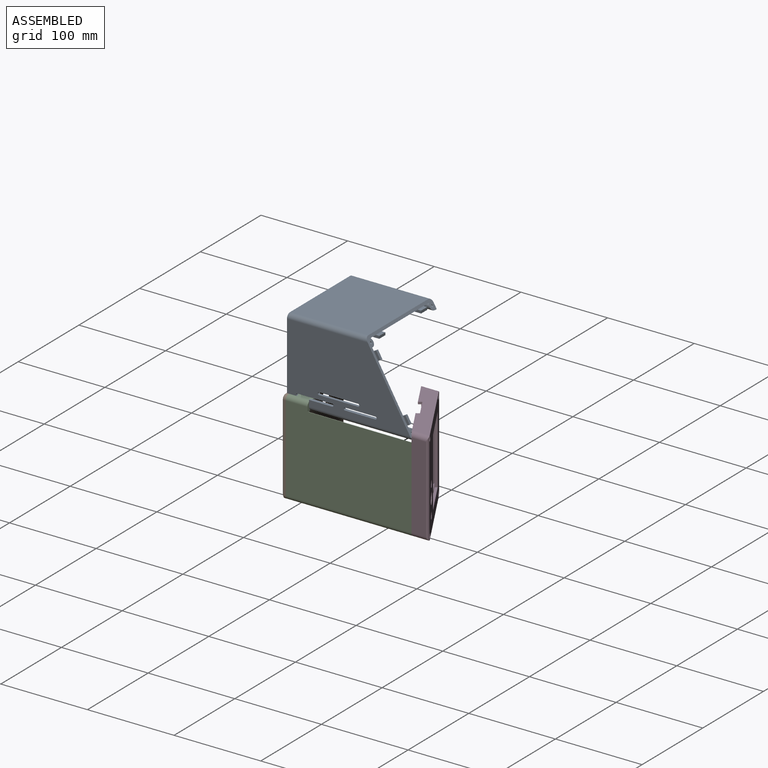
[diagram: assembled view]
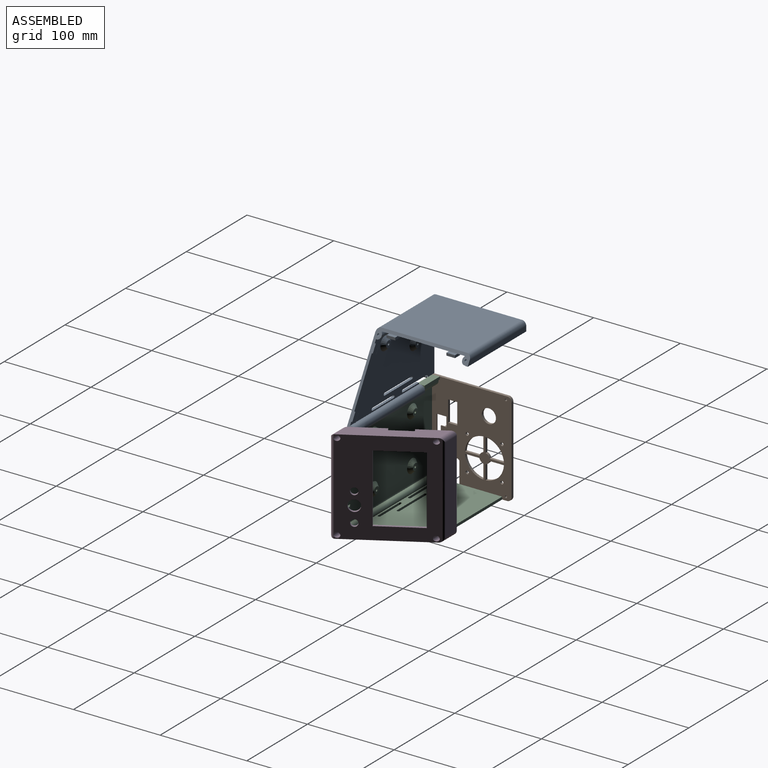
[diagram: assembled view, second angle]
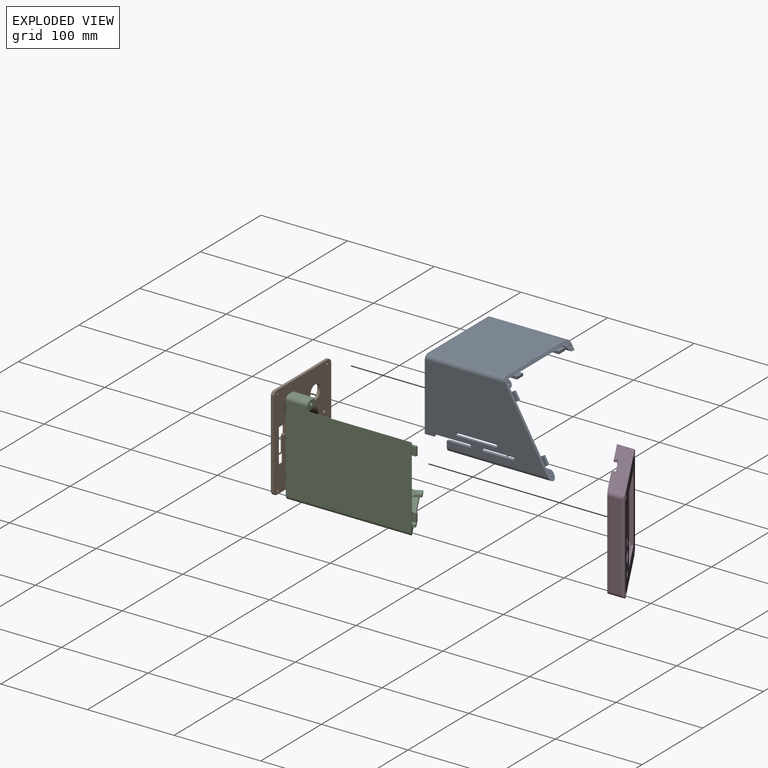
[diagram: exploded view]
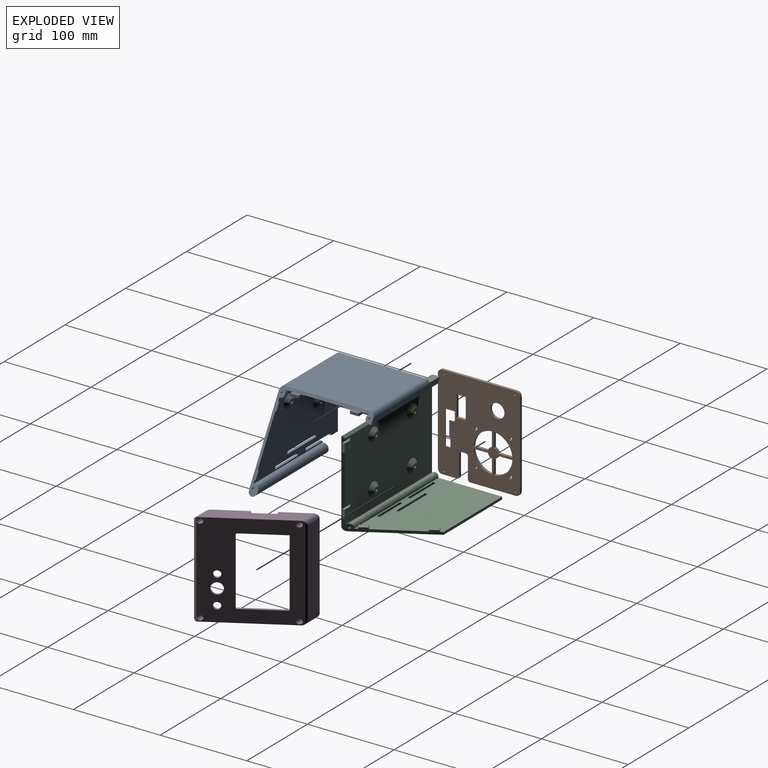
[diagram: exploded view, second angle]
ASSEMBLY  parts=4 mates=3
PART A: 75 faces, bbox 146.2x96x110.2 mm
  f0: cylinder r=1.25mm len=105.58mm, axis (-1,0,0), area 823.5mm2, adj f1,f70
  f1: plane 110.21x96.01mm, normal (0.87,0.5,0), area 833.6mm2, adj f0,f2,f3,f5,f16,f17,f18,f19
  f2: plane 116.71x0.48mm, normal (0,0,-1), area 55.7mm2, adj f1,f39,f42,f68
  f3: plane 132x73.93mm, normal (0,0,-1), area 7692mm2, adj f1,f4,f22,f33,f37,f40,f44,f46
  f4: plane 109x82.55mm, normal (-1,0,0), area 632.8mm2, adj f3,f5,f16,f17,f20,f21,f22,f23
  f5: plane 96.5x3mm, normal (0,-1,0), area 289.5mm2, adj f1,f4,f28,f30
  f6: plane 10x8mm, normal (0,-1,0), area 80mm2, adj f9,f11,f12,f13
  f7: plane 10x8mm, normal (0,-1,0), area 80mm2, adj f8,f10,f14,f15
  f8: plane 10x3mm, normal (1,0,0), area 30mm2, adj f7,f10,f14,f18
  f9: plane 10x3mm, normal (1,0,0), area 30mm2, adj f6,f11,f13,f19
  f10: plane 13.2x3mm, normal (0,0,-1), area 31.8mm2, adj f7,f8,f15,f18,f20
  f11: plane 13.2x3mm, normal (0,0,1), area 31.8mm2, adj f6,f9,f12,f19,f20
  f12: plane 10x5.2mm, normal (-0.5,-0.87,0), area 60mm2, adj f6,f11,f13,f20
  f13: plane 13.2x3mm, normal (0,0,-1), area 31.8mm2, adj f6,f9,f12,f19,f20
  f14: plane 13.2x3mm, normal (0,0,1), area 31.8mm2, adj f7,f8,f15,f18,f20
  f15: plane 10x5.2mm, normal (-0.5,-0.87,0), area 60mm2, adj f7,f10,f14,f20
  f16: cylinder r=4mm len=96.34mm, axis (-1,0,0), area 1046.3mm2, adj f1,f4,f17,f28
  f17: cylinder r=5mm len=92.16mm, axis (-1,0,0), area 153.3mm2, adj f1,f4,f16,f20
  f18: plane 10x4mm, normal (0,1,0), area 40mm2, adj f1,f8,f10,f14
  f19: plane 10x4mm, normal (0,1,0), area 40mm2, adj f1,f9,f11,f13
  f20: plane 93x92mm, normal (0,-1,0), area 8372mm2, adj f1,f4,f10,f11,f12,f13,f14,f15
  f21: cylinder r=5mm len=92.16mm, axis (-1,0,0), area 153.3mm2, adj f1,f4,f20,f22
  f22: cylinder r=4mm len=96.34mm, axis (-1,0,0), area 1046.3mm2, adj f1,f3,f4,f21
  f23: cylinder r=5mm len=93.15mm, axis (-1,0,0), area 720.3mm2, adj f1,f4,f24,f29
  f24: plane 99x90.27mm, normal (0,1,0), area 8936.5mm2, adj f1,f4,f23,f25
  f25: cylinder r=5mm len=93.15mm, axis (-1,0,0), area 720.3mm2, adj f1,f4,f24,f30
  f26: cylinder r=1.25mm len=94.75mm, axis (-1,0,0), area 738.6mm2, adj f1,f4
  f27: cylinder r=1.25mm len=94.75mm, axis (-1,0,0), area 738.6mm2, adj f1,f4
  f28: plane 96.5x0.43mm, normal (0,0,1), area 41.2mm2, adj f1,f4,f5,f16
  f29: plane 142.11x84.8mm, normal (0,0,1), area 9413.5mm2, adj f1,f4,f23,f42,f49,f50,f51,f52
  f30: plane 96.5x5.8mm, normal (0,0,-1), area 550mm2, adj f1,f4,f5,f25
  f31: plane 8.66x5mm, normal (0.87,0.5,0), area 30mm2, adj f32,f33,f34,f36
  f32: plane 11.66x10.2mm, normal (0,0,-1), area 60mm2, adj f31,f33,f36,f37
  f33: plane 9.7x5.6mm, normal (-0.5,0.87,0), area 25.8mm2, adj f3,f31,f32,f34,f37
  f34: plane 10.16x7.6mm, normal (0,0,1), area 30mm2, adj f1,f31,f33,f36
  f35: plane 7.75x3.36mm, normal (0,0,-1), area 13mm2, adj f1,f36,f40
  f36: plane 8.41x4.86mm, normal (0.5,-0.87,0), area 25.2mm2, adj f31,f32,f34,f35,f37,f40
  f37: plane 10.52x9.5mm, normal (-0.43,-0.25,-0.87), area 59.3mm2, adj f3,f32,f33,f36,f40
  f38: plane 113.55x0.94mm, normal (0,1,-0.02), area 106.4mm2, adj f1,f39,f41,f68
  f39: cylinder r=5mm len=116.44mm, axis (-1,0,0), area 891mm2, adj f1,f2,f38,f68
  f40: plane 113.54x1mm, normal (0,1,0), area 112.8mm2, adj f1,f3,f35,f36,f37,f41,f68
  f41: cylinder r=4mm len=113.54mm, axis (-1,0,0), area 19.2mm2, adj f1,f38,f40,f68
  f42: cylinder r=5mm len=119.61mm, axis (-1,0,0), area 1862.2mm2, adj f1,f2,f29,f68
  f43: plane 10.16x7.6mm, normal (0,0,1), area 30mm2, adj f1,f44,f46,f47
  f44: plane 9.7x5.6mm, normal (-0.5,0.87,0), area 25.8mm2, adj f3,f43,f45,f47,f48
  f45: plane 11.66x10.2mm, normal (0,0,-1), area 60mm2, adj f44,f46,f47,f48
  f46: plane 9.7x5.6mm, normal (0.5,-0.87,0), area 25.8mm2, adj f3,f43,f45,f47,f48
  f47: plane 8.66x5mm, normal (0.87,0.5,0), area 30mm2, adj f43,f44,f45,f46
  f48: plane 11.26x9.5mm, normal (-0.43,-0.25,-0.87), area 60mm2, adj f3,f44,f45,f46
  f49: plane 35x3mm, normal (0,1,0), area 105mm2, adj f3,f29,f50,f52
  f50: cylinder r=1.5mm len=3mm, axis (0,0,-1), area 14.1mm2, adj f3,f29,f49,f51
  f51: plane 35x3mm, normal (0,-1,0), area 105mm2, adj f3,f29,f50,f52
  f52: cylinder r=1.5mm len=3mm, axis (0,0,-1), area 14.1mm2, adj f3,f29,f49,f51
  f53: plane 45x3mm, normal (0,1,0), area 135mm2, adj f3,f29,f54,f56
  f54: cylinder r=1.5mm len=3mm, axis (0,0,-1), area 14.1mm2, adj f3,f29,f53,f55
  f55: plane 45x3mm, normal (0,-1,0), area 135mm2, adj f3,f29,f54,f56
  f56: cylinder r=1.5mm len=3mm, axis (0,0,-1), area 14.1mm2, adj f3,f29,f53,f55
  f57: plane 26.6x3mm, normal (0,1,0), area 79.8mm2, adj f3,f29,f59,f68
  f58: plane 40x3mm, normal (0,-1,0), area 120mm2, adj f3,f29,f59,f72
  f59: cylinder r=1.5mm len=3mm, axis (0,0,-1), area 14.1mm2, adj f3,f29,f57,f58
  f60: cylinder r=1.25mm len=4mm, axis (0,0,1), area 31.4mm2, adj f61,f62
  f61: plane 8x8mm, normal (0,0,-1), area 45.4mm2, adj f60,f67
  f62: plane 2.5x2.5mm, normal (0,0,-1), area 4.9mm2, adj f60
  f63: cylinder r=1.25mm len=4mm, axis (0,0,1), area 31.4mm2, adj f64,f65
  f64: plane 8x8mm, normal (0,0,-1), area 45.4mm2, adj f63,f66
  f65: plane 2.5x2.5mm, normal (0,0,-1), area 4.9mm2, adj f63
  f66: cone r=4mm half-angle=45deg, axis (0,0,1), area 213.3mm2, adj f3,f64,f71
  f67: cone r=4mm half-angle=45deg, axis (0,0,1), area 213.3mm2, adj f3,f61
  f68: plane 12x10mm, normal (-1,0,0), area 79.1mm2, adj f2,f3,f29,f38,f39,f40,f41,f42
  f69: cylinder r=2.12mm len=11mm, axis (-1,0,0), area 146.9mm2, adj f68,f70
  f70: plane 4.25x4.25mm, normal (-1,0,0), area 9.3mm2, adj f0,f69
  f71: extruded ~1.4x0.75mm, area 1.1mm2, adj f3,f66,f73
  f72: cylinder r=1.5mm len=3mm, axis (0,0,-1), area 11.5mm2, adj f3,f29,f58,f74
  f73: plane 1.4x0.04mm, normal (-1,0,0), area 0mm2, adj f3,f71
  f74: plane 11.17x3mm, normal (0,-1,0), area 33.5mm2, adj f3,f4,f29,f72
PART B: 118 faces, bbox 4x94.8x109 mm
  f0: plane 24.32x1mm, normal (0,-1,0), area 24.3mm2, adj f11,f27,f29,f63
  f1: plane 107x92.8mm, normal (-1,0,0), area 6216.8mm2, adj f65,f66,f67,f68,f69,f70,f71,f72
  f2: plane 16.79x1mm, normal (0,-1,0), area 16.8mm2, adj f3,f5,f11,f57
  f3: plane 4.5x1mm, normal (0,0,1), area 4.5mm2, adj f2,f4,f11,f57
  f4: plane 27.79x1mm, normal (0,1,0), area 27.8mm2, adj f3,f11,f25,f57
  f5: plane 6.5x3mm, normal (0,0,1), area 11.5mm2, adj f2,f11,f26,f57,f62,f72
  f6: plane 6x1mm, normal (0,0,-1), area 6mm2, adj f7,f8,f11,f57
  f7: plane 10x1mm, normal (0,1,0), area 10mm2, adj f6,f9,f11,f57
  f8: plane 10x1mm, normal (0,-1,0), area 10mm2, adj f6,f9,f11,f57
  f9: plane 6x1mm, normal (0,0,1), area 6mm2, adj f7,f8,f11,f57
  f10: plane 17.1x3mm, normal (0,0,-1), area 51.3mm2, adj f11,f14,f56,f92
  f11: plane 109x94.8mm, normal (1,0,0), area 7923.9mm2, adj f0,f2,f3,f4,f5,f6,f7,f8
  f12: cylinder r=5mm len=5mm, axis (1,0,0), area 23.6mm2, adj f11,f13,f22,f78
  f13: plane 52.7x3mm, normal (0,0,-1), area 158.1mm2, adj f11,f12,f55,f77
  f14: cylinder r=5mm len=5mm, axis (1,0,0), area 23.6mm2, adj f10,f11,f15,f90
  f15: plane 99x3mm, normal (0,-1,0), area 297mm2, adj f11,f14,f16,f88
  f16: cylinder r=5mm len=5mm, axis (1,0,0), area 23.6mm2, adj f11,f15,f17,f86
  f17: plane 84.8x3mm, normal (0,0,1), area 254.4mm2, adj f11,f16,f18,f84
  f18: cylinder r=5mm len=5mm, axis (1,0,0), area 23.6mm2, adj f11,f17,f22,f82
  f19: cylinder r=1.25mm len=3mm, axis (1,0,0), area 23.6mm2, adj f11,f115
  f20: cylinder r=1.25mm len=3mm, axis (1,0,0), area 23.6mm2, adj f11,f116
  f21: cylinder r=1.25mm len=3mm, axis (1,0,0), area 23.6mm2, adj f11,f117
  f22: plane 99x3mm, normal (0,1,0), area 297mm2, adj f11,f12,f18,f80
  f23: cylinder r=1.25mm len=3mm, axis (1,0,0), area 23.6mm2, adj f11,f114
  f24: cylinder r=1.85mm len=3.7mm, axis (-1,0,0), area 34.9mm2, adj f11,f112
  f25: plane 15x3mm, normal (0,0,-1), area 41mm2, adj f4,f11,f26,f57,f58,f69
  f26: plane 11x3mm, normal (0,-1,0), area 33mm2, adj f5,f11,f25,f71
  f27: plane 20.5x3mm, normal (0,0,1), area 51.5mm2, adj f0,f11,f28,f63,f64,f74
  f28: plane 24.32x3mm, normal (0,1,0), area 73mm2, adj f11,f27,f29,f73
  f29: plane 20.5x3mm, normal (0,0,-1), area 51.5mm2, adj f0,f11,f28,f63,f64,f75
  f30: cylinder r=22.5mm len=21.22mm, axis (-1,0,0), area 98.5mm2, adj f11,f31,f32,f108
  f31: plane 16.6x3mm, normal (0,-1,0), area 49.8mm2, adj f11,f30,f33,f109
  f32: plane 16.6x3mm, normal (0,0,-1), area 49.8mm2, adj f11,f30,f33,f106
  f33: cylinder r=6mm len=4.62mm, axis (-1,0,0), area 20.7mm2, adj f11,f31,f32,f107
  f34: cylinder r=22.5mm len=21.22mm, axis (-1,0,0), area 98.5mm2, adj f11,f35,f36,f94
  f35: plane 16.6x3mm, normal (0,0,1), area 49.8mm2, adj f11,f34,f37,f95
  f36: plane 16.6x3mm, normal (0,-1,0), area 49.8mm2, adj f11,f34,f37,f96
  f37: cylinder r=6mm len=4.62mm, axis (-1,0,0), area 20.7mm2, adj f11,f35,f36,f97
  f38: cylinder r=1.85mm len=3.7mm, axis (-1,0,0), area 34.9mm2, adj f11,f111
  f39: cylinder r=22.5mm len=21.22mm, axis (-1,0,0), area 98.5mm2, adj f11,f40,f41,f98
  f40: plane 16.6x3mm, normal (0,1,0), area 49.8mm2, adj f11,f39,f42,f99
  f41: plane 16.6x3mm, normal (0,0,1), area 49.8mm2, adj f11,f39,f42,f100
  f42: cylinder r=6mm len=4.62mm, axis (-1,0,0), area 20.7mm2, adj f11,f40,f41,f101
  f43: cylinder r=1.85mm len=3.7mm, axis (-1,0,0), area 34.9mm2, adj f11,f113
  f44: cylinder r=1.85mm len=3.7mm, axis (-1,0,0), area 34.9mm2, adj f11,f110
  f45: cylinder r=22.5mm len=21.22mm, axis (-1,0,0), area 98.5mm2, adj f11,f46,f47,f102
  f46: plane 16.6x3mm, normal (0,0,-1), area 49.8mm2, adj f11,f45,f48,f103
  f47: plane 16.6x3mm, normal (0,1,0), area 49.8mm2, adj f11,f45,f48,f104
  f48: cylinder r=6mm len=4.62mm, axis (-1,0,0), area 20.7mm2, adj f11,f46,f47,f105
  f49: plane 24x3mm, normal (0,-1,0), area 72mm2, adj f11,f53,f55,f81
  f50: plane 5x3mm, normal (0,0,-1), area 15mm2, adj f11,f53,f54,f85
  f51: plane 24x3mm, normal (0,1,0), area 72mm2, adj f11,f54,f56,f89
  f52: cylinder r=8.2mm len=16.4mm, axis (1,0,0), area 154.6mm2, adj f11,f93
  f53: cylinder r=2.5mm len=3mm, axis (1,0,0), area 11.8mm2, adj f11,f49,f50,f83
  f54: cylinder r=2.5mm len=3mm, axis (-1,0,0), area 11.8mm2, adj f11,f50,f51,f87
  f55: cylinder r=2.5mm len=3mm, axis (1,0,0), area 11.8mm2, adj f11,f13,f49,f79
  f56: cylinder r=2.5mm len=3mm, axis (-1,0,0), area 11.8mm2, adj f10,f11,f51,f91
  f57: plane 43.09x14mm, normal (-1,0,0), area 332.5mm2, adj f2,f3,f4,f5,f6,f7,f8,f9
  f58: plane 43.09x2mm, normal (0,1,0), area 86.2mm2, adj f25,f57,f59,f67
  f59: plane 14x2mm, normal (0,0,1), area 28mm2, adj f57,f58,f60,f65
  f60: plane 15.3x2mm, normal (0,-1,0), area 30.6mm2, adj f57,f59,f61,f66
  f61: plane 2x1.5mm, normal (0,0,-1), area 3mm2, adj f57,f60,f62,f68
  f62: plane 16.79x2mm, normal (0,-1,0), area 33.6mm2, adj f5,f57,f61,f70
  f63: plane 24.32x10mm, normal (-1,0,0), area 243.2mm2, adj f0,f27,f29,f64
  f64: plane 24.32x2mm, normal (0,-1,0), area 48.6mm2, adj f27,f29,f63,f76
  f65: plane 16x1mm, normal (-0.71,0,0.71), area 21.2mm2, adj f1,f59,f66,f67
  f66: plane 17.3x1mm, normal (-0.71,-0.71,0), area 23.1mm2, adj f1,f60,f65,f68
  f67: plane 45.09x1mm, normal (-0.71,0.71,0), area 62.3mm2, adj f1,f58,f65,f69
  f68: plane 2.5x1mm, normal (-0.71,0,-0.71), area 2.1mm2, adj f1,f61,f66,f70
  f69: plane 17x1mm, normal (-0.71,0,-0.71), area 22.6mm2, adj f1,f25,f67,f71
  f70: plane 16.79x1mm, normal (-0.71,-0.71,0), area 22.3mm2, adj f1,f62,f68,f72
  f71: plane 13x1mm, normal (-0.71,-0.71,0), area 17mm2, adj f1,f26,f69,f72
  f72: plane 3.5x1mm, normal (-0.71,0,0.71), area 3.5mm2, adj f1,f5,f70,f71
  f73: plane 26.32x1mm, normal (-0.71,0.71,0), area 35.8mm2, adj f1,f28,f74,f75
  f74: plane 22.5x1mm, normal (-0.71,0,0.71), area 30.4mm2, adj f1,f27,f73,f76
  f75: plane 22.5x1mm, normal (-0.71,0,-0.71), area 30.4mm2, adj f1,f29,f73,f76
  f76: plane 26.32x1mm, normal (-0.71,-0.71,0), area 35.8mm2, adj f1,f64,f74,f75
  f77: plane 52.7x1mm, normal (-0.71,0,-0.71), area 74.5mm2, adj f1,f13,f78,f79
  f78: cone r=5mm half-angle=45deg, axis (1,0,0), area 10mm2, adj f1,f12,f77,f80
  f79: cone r=1.5mm half-angle=45deg, axis (1,0,0), area 4.4mm2, adj f1,f55,f77,f81
  f80: plane 99x1mm, normal (-0.71,0.71,0), area 140mm2, adj f1,f22,f78,f82
  f81: plane 24x1mm, normal (-0.71,-0.71,0), area 33.9mm2, adj f1,f49,f79,f83
  f82: cone r=5mm half-angle=45deg, axis (1,0,0), area 10mm2, adj f1,f18,f80,f84
  f83: cone r=3.5mm half-angle=45deg, axis (-1,0,0), area 6.7mm2, adj f1,f53,f81,f85
  f84: plane 84.8x1mm, normal (-0.71,0,0.71), area 119.9mm2, adj f1,f17,f82,f86
  f85: plane 5x1mm, normal (-0.71,0,-0.71), area 7.1mm2, adj f1,f50,f83,f87
  f86: cone r=5mm half-angle=45deg, axis (1,0,0), area 10mm2, adj f1,f16,f84,f88
  f87: cone r=3.5mm half-angle=45deg, axis (-1,0,0), area 6.7mm2, adj f1,f54,f85,f89
  f88: plane 99x1mm, normal (-0.71,-0.71,0), area 140mm2, adj f1,f15,f86,f90
  f89: plane 24x1mm, normal (-0.71,0.71,0), area 33.9mm2, adj f1,f51,f87,f91
  f90: cone r=5mm half-angle=45deg, axis (1,0,0), area 10mm2, adj f1,f14,f88,f92
  f91: cone r=1.5mm half-angle=45deg, axis (1,0,0), area 4.4mm2, adj f1,f56,f89,f92
  f92: plane 17.1x1mm, normal (-0.71,0,-0.71), area 24.2mm2, adj f1,f10,f90,f91
  f93: cone r=9.2mm half-angle=45deg, axis (-1,0,0), area 77.3mm2, adj f1,f52
  f94: cone r=22.5mm half-angle=45deg, axis (-1,0,0), area 48.9mm2, adj f1,f34,f95,f96
  f95: plane 18.52x1.02mm, normal (-0.71,0,0.71), area 24.8mm2, adj f1,f35,f94,f97
  f96: plane 18.52x1.02mm, normal (-0.71,-0.71,0), area 24.8mm2, adj f1,f36,f94,f97
  f97: cone r=5mm half-angle=45deg, axis (1,0,0), area 10.1mm2, adj f1,f37,f95,f96
  f98: cone r=22.5mm half-angle=45deg, axis (-1,0,0), area 48.9mm2, adj f1,f39,f99,f100
  f99: plane 18.52x1.02mm, normal (-0.71,0.71,0), area 24.8mm2, adj f1,f40,f98,f101
  f100: plane 18.52x1.02mm, normal (-0.71,0,0.71), area 24.8mm2, adj f1,f41,f98,f101
  f101: cone r=5mm half-angle=45deg, axis (1,0,0), area 10.1mm2, adj f1,f42,f99,f100
  f102: cone r=22.5mm half-angle=45deg, axis (-1,0,0), area 48.9mm2, adj f1,f45,f103,f104
  f103: plane 18.52x1.02mm, normal (-0.71,0,-0.71), area 24.8mm2, adj f1,f46,f102,f105
  f104: plane 18.52x1.02mm, normal (-0.71,0.71,0), area 24.8mm2, adj f1,f47,f102,f105
  f105: cone r=5mm half-angle=45deg, axis (1,0,0), area 10.1mm2, adj f1,f48,f103,f104
  f106: plane 18.52x1.02mm, normal (-0.71,0,-0.71), area 24.8mm2, adj f1,f32,f107,f108
  f107: cone r=5mm half-angle=45deg, axis (1,0,0), area 10.1mm2, adj f1,f33,f106,f109
  f108: cone r=22.5mm half-angle=45deg, axis (-1,0,0), area 48.9mm2, adj f1,f30,f106,f109
  f109: plane 18.52x1.02mm, normal (-0.71,-0.71,0), area 24.8mm2, adj f1,f31,f107,f108
  f110: cone r=1.85mm half-angle=45deg, axis (-1,0,0), area 20.9mm2, adj f1,f44
  f111: cone r=1.85mm half-angle=45deg, axis (-1,0,0), area 20.9mm2, adj f1,f38
  f112: cone r=1.85mm half-angle=45deg, axis (-1,0,0), area 20.9mm2, adj f1,f24
  f113: cone r=1.85mm half-angle=45deg, axis (-1,0,0), area 20.9mm2, adj f1,f43
  f114: cone r=1.25mm half-angle=45deg, axis (-1,0,0), area 15.6mm2, adj f1,f23
  f115: cone r=1.25mm half-angle=45deg, axis (-1,0,0), area 15.6mm2, adj f1,f19
  f116: cone r=1.25mm half-angle=45deg, axis (-1,0,0), area 15.6mm2, adj f1,f20
  f117: cone r=1.25mm half-angle=45deg, axis (-1,0,0), area 15.6mm2, adj f1,f21
PART C: 79 faces, bbox 149.2x85.2x110.2 mm
  f0: plane 11.66x10.2mm, normal (0,0,1), area 60mm2, adj f1,f2,f3,f4
  f1: plane 8.66x5mm, normal (0.87,0.5,0), area 30mm2, adj f0,f2,f4,f13
  f2: plane 9.7x5.6mm, normal (-0.5,0.87,0), area 25.8mm2, adj f0,f1,f3,f13,f25
  f3: plane 11.26x9.5mm, normal (-0.43,-0.25,0.87), area 60mm2, adj f0,f2,f4,f25
  f4: plane 9.7x5.6mm, normal (0.5,-0.87,0), area 25.8mm2, adj f0,f1,f3,f13,f25
  f5: cylinder r=1.5mm len=3mm, axis (0,0,-1), area 14.1mm2, adj f6,f8,f24,f25
  f6: plane 45x3mm, normal (0,-1,0), area 135mm2, adj f5,f7,f24,f25
  f7: cylinder r=1.5mm len=3mm, axis (0,0,-1), area 14.1mm2, adj f6,f8,f24,f25
  f8: plane 45x3mm, normal (0,1,0), area 135mm2, adj f5,f7,f24,f25
  f9: plane 9.7x5.6mm, normal (-0.5,0.87,0), area 25.8mm2, adj f10,f11,f12,f23,f25
  f10: plane 11.66x10.2mm, normal (0,0,1), area 60mm2, adj f9,f11,f22,f23
  f11: plane 8.66x5mm, normal (0.87,0.5,0), area 30mm2, adj f9,f10,f12,f22
  f12: plane 10.16x7.6mm, normal (0,0,-1), area 30mm2, adj f9,f11,f20,f22
  f13: plane 10.16x7.6mm, normal (0,0,-1), area 30mm2, adj f1,f2,f4,f20
  f14: plane 96.5x3mm, normal (0,1,0), area 289.5mm2, adj f20,f24,f25,f27
  f15: plane 40x3mm, normal (0,-1,0), area 120mm2, adj f17,f24,f25,f26
  f16: plane 35x3mm, normal (0,-1,0), area 105mm2, adj f18,f19,f24,f25
  f17: cylinder r=1.5mm len=3mm, axis (0,0,-1), area 14.1mm2, adj f15,f24,f25,f28
  f18: cylinder r=1.5mm len=3mm, axis (0,0,-1), area 14.1mm2, adj f16,f24,f25,f29
  f19: cylinder r=1.5mm len=3mm, axis (0,0,-1), area 14.1mm2, adj f16,f24,f25,f29
  f20: plane 100.21x85.21mm, normal (0.87,0.5,0), area 645.2mm2, adj f12,f13,f14,f21,f24,f25,f33,f34
  f21: plane 8.04x3.48mm, normal (0,0,1), area 14mm2, adj f20,f22,f34
  f22: plane 8.71x5.06mm, normal (0.5,-0.87,0), area 25.2mm2, adj f10,f11,f12,f21,f23,f34
  f23: plane 10.68x9.54mm, normal (-0.43,-0.25,0.87), area 59.4mm2, adj f9,f10,f22,f25,f34
  f24: plane 142.11x79mm, normal (0,0,-1), area 9044.1mm2, adj f5,f6,f7,f8,f14,f15,f16,f17
  f25: plane 132x73.63mm, normal (0,0,1), area 8111.4mm2, adj f2,f3,f4,f5,f6,f7,f8,f9
  f26: cylinder r=1.5mm len=3mm, axis (0,0,-1), area 14.1mm2, adj f15,f24,f25,f28
  f27: plane 109x84mm, normal (-1,0,0), area 655.6mm2, adj f14,f24,f25,f30,f31,f32,f33,f34
  f28: plane 40x3mm, normal (0,1,0), area 120mm2, adj f17,f24,f25,f26
  f29: plane 35x3mm, normal (0,1,0), area 105mm2, adj f18,f19,f24,f25
  f30: plane 25x7mm, normal (0,0,1), area 175mm2, adj f27,f44,f45,f46
  f31: plane 25x1.5mm, normal (0,0,-1), area 37.5mm2, adj f27,f39,f44,f46
  f32: cylinder r=1.25mm len=14mm, axis (-1,0,0), area 110mm2, adj f27,f77
  f33: cylinder r=1.25mm len=141.97mm, axis (-1,0,0), area 1109.5mm2, adj f20,f27
  f34: cylinder r=4mm len=143.11mm, axis (-1,0,0), area 1551.8mm2, adj f20,f21,f22,f23,f25,f27,f41
  f35: plane 25x0.94mm, normal (0,1,-0.02), area 23.4mm2, adj f27,f36,f40,f46
  f36: cylinder r=5mm len=25mm, axis (-1,0,0), area 193.7mm2, adj f27,f35,f37,f46
  f37: plane 25x2.48mm, normal (0,0,-1), area 61.9mm2, adj f27,f36,f38,f46
  f38: plane 143.27x91mm, normal (0,1,0), area 11768.2mm2, adj f20,f27,f37,f41,f46,f51,f52,f53
  f39: plane 25x1mm, normal (0,1,0), area 25mm2, adj f27,f31,f40,f46
  f40: cylinder r=4mm len=25mm, axis (-1,0,0), area 4.2mm2, adj f27,f35,f39,f46
  f41: cylinder r=5mm len=143.27mm, axis (-1,0,0), area 238.4mm2, adj f20,f27,f34,f38
  f42: cylinder r=5mm len=145mm, axis (-1,0,0), area 1127.5mm2, adj f20,f24,f27,f43
  f43: plane 145x99mm, normal (0,-1,0), area 13755mm2, adj f20,f27,f42,f45,f46,f59
  f44: plane 25x3mm, normal (0,1,0), area 75mm2, adj f27,f30,f31,f46
  f45: cylinder r=5mm len=25mm, axis (-1,0,0), area 196.3mm2, adj f27,f30,f43,f46
  f46: plane 12.5x12mm, normal (1,0,0), area 87.6mm2, adj f30,f31,f35,f36,f37,f38,f39,f40
  f47: plane 10x8mm, normal (0,1,0), area 80mm2, adj f50,f51,f52,f53
  f48: plane 10x8mm, normal (0,1,0), area 80mm2, adj f49,f54,f55,f56
  f49: plane 10x3mm, normal (1,0,0), area 30mm2, adj f48,f54,f56,f57
  f50: plane 10x3mm, normal (1,0,0), area 30mm2, adj f47,f51,f53,f58
  f51: plane 13.2x3mm, normal (0,0,-1), area 31.8mm2, adj f38,f47,f50,f52,f58
  f52: plane 10x5.2mm, normal (-0.5,0.87,0), area 60mm2, adj f38,f47,f51,f53
  f53: plane 13.2x3mm, normal (0,0,1), area 31.8mm2, adj f38,f47,f50,f52,f58
  f54: plane 13.2x3mm, normal (0,0,-1), area 31.8mm2, adj f38,f48,f49,f55,f57
  f55: plane 10x5.2mm, normal (-0.5,0.87,0), area 60mm2, adj f38,f48,f54,f56
  f56: plane 13.2x3mm, normal (0,0,1), area 31.8mm2, adj f38,f48,f49,f55,f57
  f57: plane 10x4.73mm, normal (0,-1,0), area 47.3mm2, adj f20,f49,f54,f56
  f58: plane 10x4.73mm, normal (0,-1,0), area 47.3mm2, adj f20,f50,f51,f53
  f59: plane 120x0.5mm, normal (0,0,1), area 59.9mm2, adj f20,f43,f46,f78
  f60: plane 2.5x2.5mm, normal (0,1,0), area 4.9mm2, adj f64
  f61: plane 2.5x2.5mm, normal (0,1,0), area 4.9mm2, adj f65
  f62: plane 2.5x2.5mm, normal (0,1,0), area 4.9mm2, adj f66
  f63: plane 2.5x2.5mm, normal (0,1,0), area 4.9mm2, adj f67
  f64: cylinder r=1.25mm len=4mm, axis (0,-1,0), area 31.4mm2, adj f60,f68
  f65: cylinder r=1.25mm len=4mm, axis (0,-1,0), area 31.4mm2, adj f61,f69
  f66: cylinder r=1.25mm len=4mm, axis (0,-1,0), area 31.4mm2, adj f62,f70
  f67: cylinder r=1.25mm len=4mm, axis (0,-1,0), area 31.4mm2, adj f63,f71
  f68: plane 8x8mm, normal (0,1,0), area 45.4mm2, adj f64,f72
  f69: plane 8x8mm, normal (0,1,0), area 45.4mm2, adj f65,f73
  f70: plane 8x8mm, normal (0,1,0), area 45.4mm2, adj f66,f74
  f71: plane 8x8mm, normal (0,1,0), area 45.4mm2, adj f67,f75
  f72: cone r=4mm half-angle=45deg, axis (0,-1,0), area 213.3mm2, adj f38,f68
  f73: cone r=4mm half-angle=45deg, axis (0,-1,0), area 213.3mm2, adj f38,f69
  f74: cone r=4mm half-angle=45deg, axis (0,-1,0), area 213.3mm2, adj f38,f70
  f75: cone r=4mm half-angle=45deg, axis (0,-1,0), area 213.3mm2, adj f38,f71
  f76: cylinder r=2.12mm len=11mm, axis (1,0,0), area 146.9mm2, adj f46,f77
  f77: plane 4.25x4.25mm, normal (1,0,0), area 9.3mm2, adj f32,f76
  f78: plane 119.71x2.5mm, normal (0,0.71,0.71), area 420.7mm2, adj f20,f38,f46,f59
PART D: 73 faces, bbox 111.1x26.8x120.9 mm
  f0: cylinder r=5mm len=22.72mm, axis (0,0.87,0.5), area 157.2mm2, adj f19,f21,f40,f41,f42,f43
  f1: cylinder r=5mm len=21.02mm, axis (0,-0.87,-0.5), area 148.9mm2, adj f19,f21,f36,f37,f43
  f2: cylinder r=5mm len=21.02mm, axis (0,0.87,0.5), area 148.9mm2, adj f19,f21,f36,f37,f45
  f3: cylinder r=5mm len=22.72mm, axis (0,0.87,0.5), area 157.2mm2, adj f21,f38,f40,f41,f42,f45
  f4: cylinder r=4mm len=22.71mm, axis (0,0.87,0.5), area 193.7mm2, adj f13,f14,f17,f19,f40,f71
  f5: cylinder r=4mm len=14.92mm, axis (0,0.87,0.5), area 11mm2, adj f18,f19,f20,f39
  f6: cylinder r=4mm len=22.48mm, axis (0,0.87,0.5), area 224.7mm2, adj f13,f14,f15,f19
  f7: cylinder r=4mm len=22.72mm, axis (0,0.87,0.5), area 195.4mm2, adj f14,f17,f38,f40,f44,f72
  f8: cylinder r=4mm len=22.48mm, axis (0,0.87,0.5), area 224.7mm2, adj f14,f15,f19,f44
  f9: cylinder r=4mm len=14.92mm, axis (0,0.87,0.5), area 11mm2, adj f10,f11,f12,f19
  f10: plane 0.63x0.24mm, normal (0,-1,0), area 0.1mm2, adj f9,f11,f12
  f11: plane 14.72x8.5mm, normal (0,0.5,-0.87), area 10.5mm2, adj f9,f10,f12,f19
  f12: plane 14.72x8.72mm, normal (1,0,0), area 3.3mm2, adj f9,f10,f11,f19
  f13: plane 94.39x14.72mm, normal (-1,0,0), area 1264.5mm2, adj f4,f6,f14,f19
  f14: plane 106.14x105.14mm, normal (0,-1,0), area 5694.9mm2, adj f4,f6,f7,f8,f13,f15,f17,f22
  f15: plane 99.24x14.72mm, normal (0,0.5,-0.87), area 1687.1mm2, adj f6,f8,f14,f19
  f16: cylinder r=4mm len=8mm, axis (0,1,0), area 20.1mm2, adj f31,f71
  f17: plane 97.13x14.72mm, normal (0,-0.5,0.87), area 1651mm2, adj f4,f7,f14,f40
  f18: plane 14.72x8.72mm, normal (-1,0,0), area 3.3mm2, adj f5,f19,f20,f39
  f19: plane 111.14x110.83mm, normal (0,-1,0), area 781.8mm2, adj f0,f1,f2,f4,f5,f6,f8,f9
  f20: plane 0.63x0.24mm, normal (0,-1,0), area 0.1mm2, adj f5,f18,f39
  f21: plane 109.17x103.17mm, normal (0,1,0), area 6830mm2, adj f0,f1,f2,f3,f22,f23,f24,f25
  f22: plane 51.3x3mm, normal (1,0,0), area 153.9mm2, adj f14,f21,f23,f25
  f23: plane 78.8x3mm, normal (0,0,-1), area 236.4mm2, adj f14,f21,f22,f24
  f24: plane 51.3x3mm, normal (-1,0,0), area 153.9mm2, adj f14,f21,f23,f25
  f25: plane 78.8x3mm, normal (0,0,1), area 236.4mm2, adj f14,f21,f22,f24
  f26: cylinder r=6.5mm len=13mm, axis (0,-1,0), area 122.5mm2, adj f14,f21
  f27: cylinder r=4mm len=8mm, axis (0,-1,0), area 75.4mm2, adj f14,f21
  f28: cylinder r=4mm len=8mm, axis (0,-1,0), area 75.4mm2, adj f14,f21
  f29: cylinder r=4mm len=8mm, axis (0,1,0), area 20.1mm2, adj f30,f72
  f30: plane 8x8mm, normal (0,-1,0), area 45.4mm2, adj f29,f50
  f31: plane 8x8mm, normal (0,-1,0), area 45.4mm2, adj f16,f52
  f32: cylinder r=4mm len=8mm, axis (0,1,0), area 20.1mm2, adj f33,f70
  f33: plane 8x8mm, normal (0,-1,0), area 45.4mm2, adj f32,f54
  f34: cylinder r=4mm len=8mm, axis (0,1,0), area 20.1mm2, adj f35,f69
  f35: plane 8x8mm, normal (0,-1,0), area 45.4mm2, adj f34,f56
  f36: cylinder r=3mm len=108.84mm, axis (-1,0,0), area 498mm2, adj f1,f2,f21,f37,f57,f60
  f37: plane 99x14.72mm, normal (0,-0.5,0.87), area 1683mm2, adj f1,f2,f19,f36
  f38: plane 39.08x8.39mm, normal (0,-1,0), area 127.5mm2, adj f3,f7,f40,f44,f45,f48,f68
  f39: plane 14.72x8.5mm, normal (0,0.5,-0.87), area 10.5mm2, adj f5,f18,f19,f20
  f40: plane 104.19x3.65mm, normal (0,-1,0), area 356.1mm2, adj f0,f3,f4,f7,f17,f19,f38,f41
  f41: plane 99x16.22mm, normal (0,0.5,-0.87), area 1854.3mm2, adj f0,f3,f40,f42
  f42: cylinder r=3mm len=106.14mm, axis (-1,0,0), area 322.2mm2, adj f0,f3,f21,f41
  f43: plane 108.15x17.72mm, normal (1,0,0), area 1735.3mm2, adj f0,f1,f19,f21
  f44: plane 94.39x14.72mm, normal (1,0,0), area 1156.8mm2, adj f7,f8,f14,f19,f38,f46,f47,f48
  f45: plane 108.15x17.72mm, normal (-1,0,0), area 1627.7mm2, adj f2,f3,f19,f21,f38,f46,f47,f48
  f46: plane 4.22x2.5mm, normal (0,0,-1), area 10.6mm2, adj f19,f44,f45,f47
  f47: plane 25.5x2.5mm, normal (0,-1,0), area 63.8mm2, adj f44,f45,f46,f48
  f48: plane 4.22x2.5mm, normal (0,0,1), area 10.6mm2, adj f38,f44,f45,f47
  f49: cone r=1.25mm half-angle=59deg, axis (0,-1,0), area 5.7mm2, adj f50
  f50: cylinder r=1.25mm len=3mm, axis (0,-1,0), area 23.6mm2, adj f30,f49
  f51: cone r=1.25mm half-angle=59deg, axis (0,-1,0), area 5.7mm2, adj f52
  f52: cylinder r=1.25mm len=3mm, axis (0,-1,0), area 23.6mm2, adj f31,f51
  f53: cone r=1.25mm half-angle=59deg, axis (0,-1,0), area 5.7mm2, adj f54
  f54: cylinder r=1.25mm len=3mm, axis (0,-1,0), area 23.6mm2, adj f33,f53
  f55: cone r=1.25mm half-angle=59deg, axis (0,-1,0), area 5.7mm2, adj f56
  f56: cylinder r=1.25mm len=3mm, axis (0,-1,0), area 23.6mm2, adj f35,f55
  f57: cylinder r=2.88mm len=10.41mm, axis (0,0.87,0.5), area 127.9mm2, adj f21,f36,f58
  f58: plane 5.75x4.98mm, normal (0,0.87,0.5), area 18.9mm2, adj f57,f59
  f59: cylinder r=1.5mm len=13.84mm, axis (0,0.87,0.5), area 126mm2, adj f19,f58
  f60: cylinder r=2.88mm len=10.41mm, axis (0,0.87,0.5), area 127.9mm2, adj f21,f36,f61
  f61: plane 5.75x4.98mm, normal (0,0.87,0.5), area 18.9mm2, adj f60,f62
  f62: cylinder r=1.5mm len=13.84mm, axis (0,0.87,0.5), area 126mm2, adj f19,f61
  f63: cylinder r=2.88mm len=10.07mm, axis (0,0.87,0.5), area 120.1mm2, adj f21,f64
  f64: plane 5.75x4.98mm, normal (0,0.87,0.5), area 18.9mm2, adj f63,f65
  f65: cylinder r=1.5mm len=14.23mm, axis (0,0.87,0.5), area 130.2mm2, adj f19,f64
  f66: cylinder r=2.88mm len=10.07mm, axis (0,0.87,0.5), area 120.1mm2, adj f21,f67
  f67: plane 5.75x4.98mm, normal (0,0.87,0.5), area 18.9mm2, adj f66,f68
  f68: cylinder r=1.5mm len=14.23mm, axis (0,0.87,0.5), area 130.2mm2, adj f38,f67
  f69: torus R=7mm, axis (0,-1,0), area 150.7mm2, adj f14,f34
  f70: torus R=7mm, axis (0,-1,0), area 150.7mm2, adj f14,f32
  f71: torus R=7mm, axis (0,-1,0), area 127.9mm2, adj f4,f14,f16
  f72: torus R=7mm, axis (0,-1,0), area 130mm2, adj f7,f14,f29
PLACE A rot(axis=(1,0,0),90deg) t=(-10.21,86.26,-31.61)mm
PLACE B t=(-9.81,83.76,-21.11)mm
PLACE C t=(-9.81,83.76,-21.11)mm
PLACE D rot(axis=(0.45,0.77,-0.45),104.5deg) t=(146.69,93.29,-23.61)mm
MATE revolute A.f0 <-> C.f32  axis (-1,0,0) through (15.19,90.26,-25.11)mm
MATE fastened B.f20 <-> C.f33  axis (1,0,0) through (-9.81,90.26,-126.11)mm
MATE fastened D.f19 <-> C.f20  axis (-0.87,-0.5,0) through (131.44,90.26,-126.11)mm
